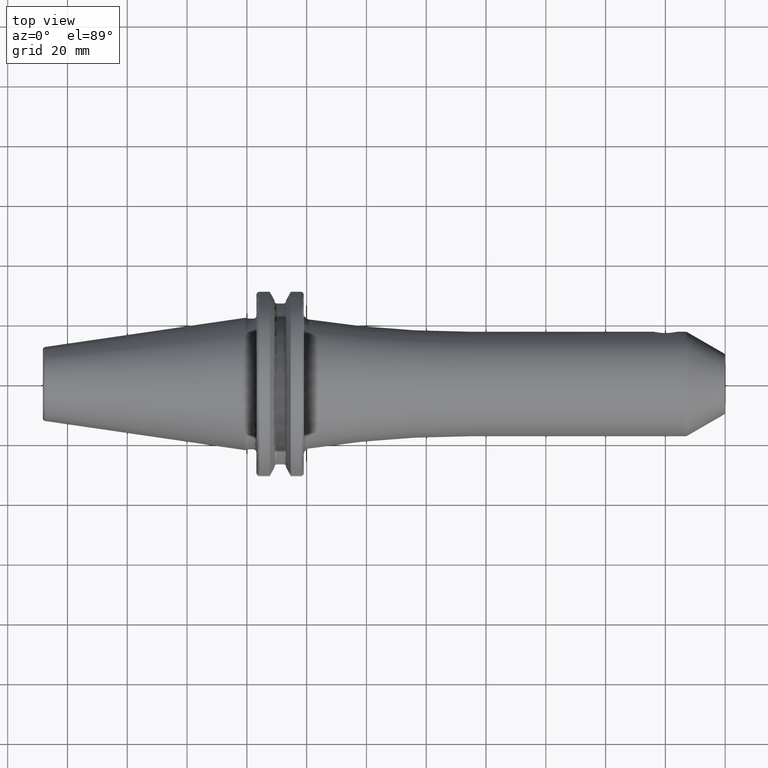
[diagram: clean part render]
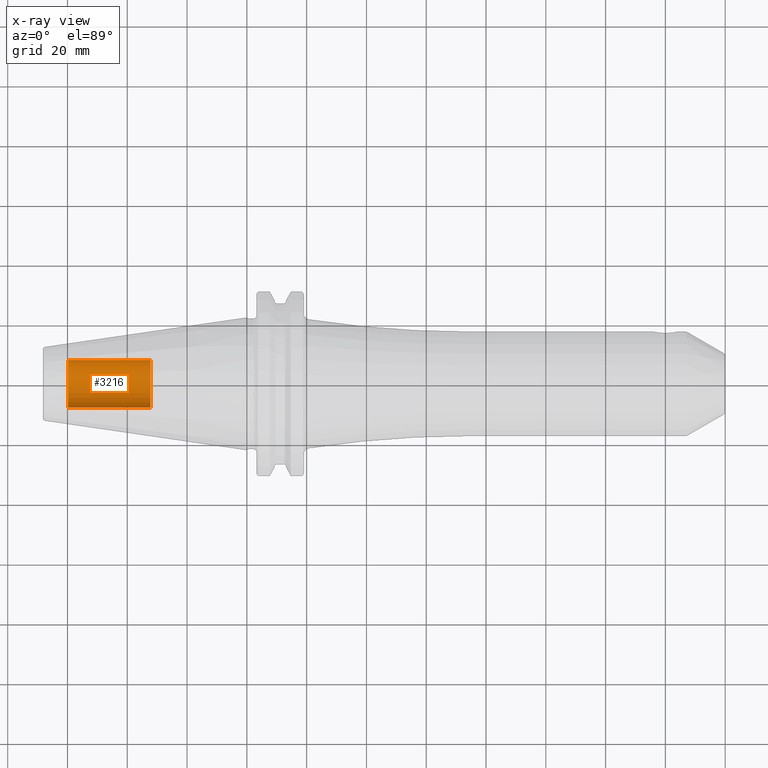
[diagram: x-ray — body ghosted, one internal face saturated and labeled with its STEP entity id]
A machine part, top view, then the same camera in x-ray: the body is ghosted and one INTERNAL B-rep face — a face not visible from any outside direction — is saturated and labeled: STEP entity #3216.
In plain terms, the highlighted cylindrical surface (edge-blend (fillet) strip) has radius 8.0028 mm, axis along (1, 0, 0).
Its self-contained STEP definition (entity closure, byte-faithful):
#3151=CARTESIAN_POINT('',(-5.98E1,0.E0,0.E0));
#3152=DIRECTION('',(-1.E0,0.E0,0.E0));
#3153=DIRECTION('',(0.E0,1.E0,0.E0));
#3154=AXIS2_PLACEMENT_3D('',#3151,#3152,#3153);
#3156=DIRECTION('',(1.E0,0.E0,0.E0));
#3157=VECTOR('',#3156,2.755E1);
#3158=CARTESIAN_POINT('',(-5.98E1,-8.00275E0,0.E0));
#3159=LINE('',#3158,#3157);
#3165=DIRECTION('',(1.E0,0.E0,0.E0));
#3166=VECTOR('',#3165,2.755E1);
#3167=CARTESIAN_POINT('',(-5.98E1,8.00275E0,0.E0));
#3168=LINE('',#3167,#3166);
#3174=CARTESIAN_POINT('',(-3.225E1,0.E0,0.E0));
#3175=DIRECTION('',(1.E0,0.E0,0.E0));
#3176=DIRECTION('',(0.E0,-1.E0,0.E0));
#3177=AXIS2_PLACEMENT_3D('',#3174,#3175,#3176);
#3189=CARTESIAN_POINT('',(-5.98E1,8.00275E0,0.E0));
#3190=CARTESIAN_POINT('',(-5.98E1,-8.00275E0,0.E0));
#3191=VERTEX_POINT('',#3189);
#3192=VERTEX_POINT('',#3190);
#3193=CARTESIAN_POINT('',(-3.225E1,8.00275E0,0.E0));
#3194=CARTESIAN_POINT('',(-3.225E1,-8.00275E0,0.E0));
#3195=VERTEX_POINT('',#3193);
#3196=VERTEX_POINT('',#3194);
#3201=CARTESIAN_POINT('',(-5.98E1,0.E0,0.E0));
#3202=DIRECTION('',(1.E0,0.E0,0.E0));
#3203=DIRECTION('',(0.E0,1.E0,0.E0));
#3204=AXIS2_PLACEMENT_3D('',#3201,#3202,#3203);
#3205=CYLINDRICAL_SURFACE('',#3204,8.00275E0);
#3207=ORIENTED_EDGE('',*,*,#3206,.T.);
#3209=ORIENTED_EDGE('',*,*,#3208,.T.);
#3211=ORIENTED_EDGE('',*,*,#3210,.T.);
#3213=ORIENTED_EDGE('',*,*,#3212,.F.);
#3214=EDGE_LOOP('',(#3207,#3209,#3211,#3213));
#3215=FACE_OUTER_BOUND('',#3214,.F.);
#3216=ADVANCED_FACE('',(#3215),#3205,.T.);
#3155=CIRCLE('',#3154,8.00275E0);
#3178=CIRCLE('',#3177,8.00275E0);
#3206=EDGE_CURVE('',#3191,#3192,#3155,.T.);
#3208=EDGE_CURVE('',#3192,#3196,#3159,.T.);
#3210=EDGE_CURVE('',#3196,#3195,#3178,.T.);
#3212=EDGE_CURVE('',#3191,#3195,#3168,.T.);